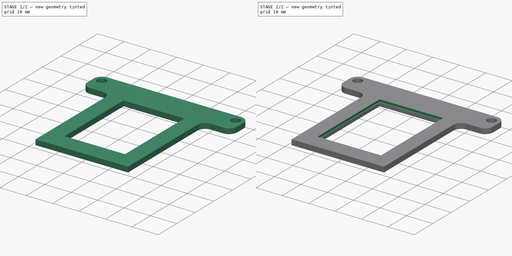
[diagram: build sequence overview — one tinted view per stage of 2, left to right]
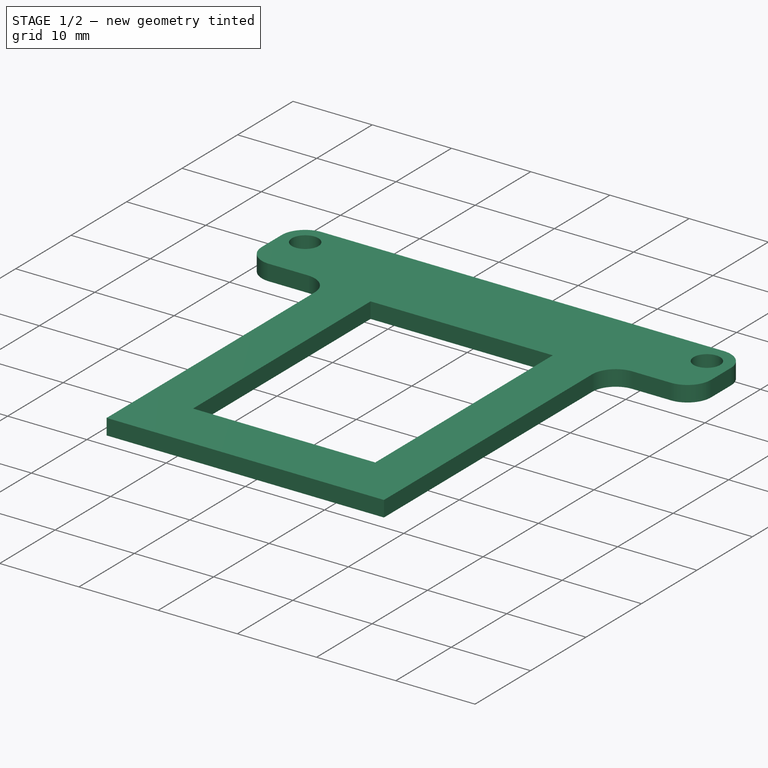
[diagram: stage 1 of 2 — iso view after this stage's code; geometry added in this stage tinted green]
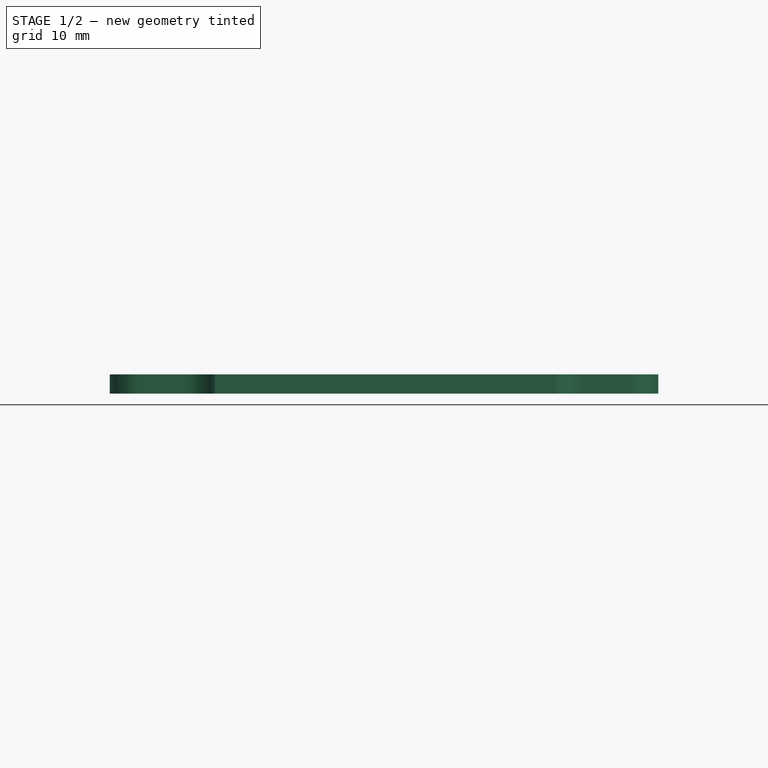
[diagram: stage 1 of 2 — front view after this stage's code; geometry added in this stage tinted green]
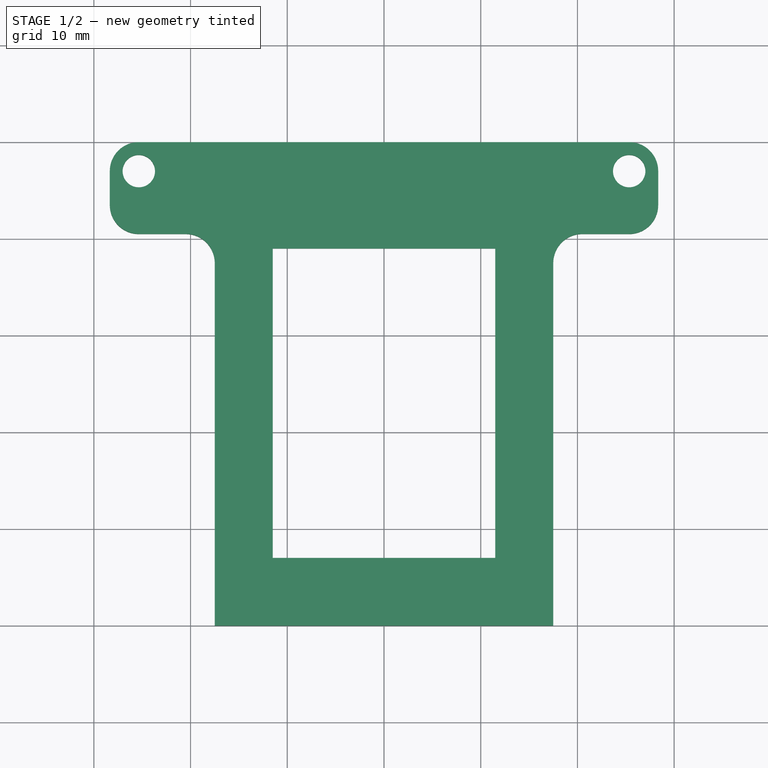
[diagram: stage 1 of 2 — top view after this stage's code; geometry added in this stage tinted green]
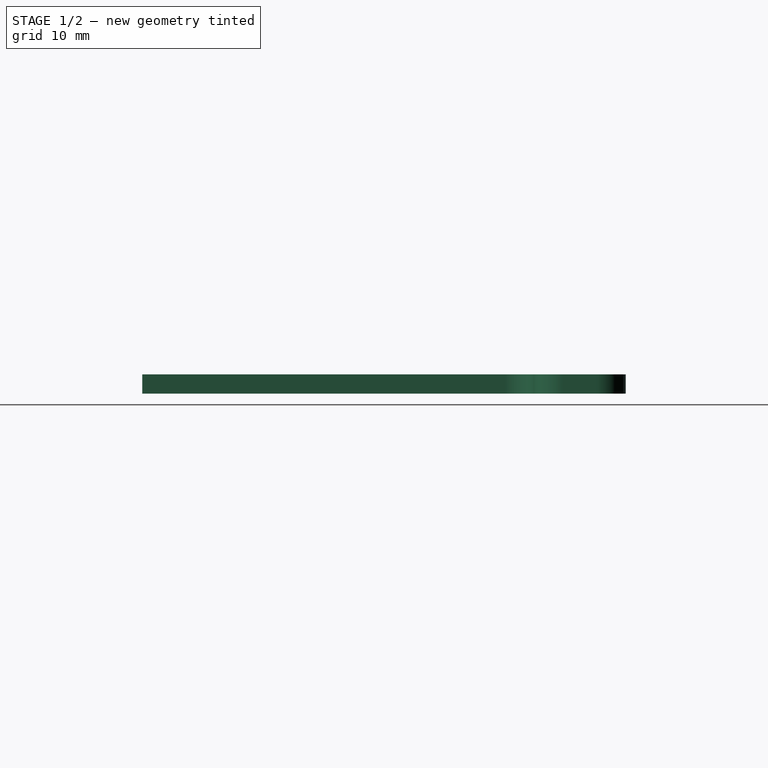
[diagram: stage 1 of 2 — right view after this stage's code; geometry added in this stage tinted green]
FCSTD DOCUMENT  (FreeCAD 0.16R4928 (Git))
Label: mote_holder
License: CreativeCommons Attribution-ShareAlike
LicenseURL: http://creativecommons.org/licenses/by-sa/4.0/
objects: Sketcher::SketchObject×2, PartDesign::Pad×1, PartDesign::Pocket×1
note: 6 computed .brp shape members not serialized (recipe doc carries the construction recipe); baked Part::Feature solids carry a one-line shape summary decoded from their .brp

FEATURE [Sketcher::SketchObject] Sketch
  sketch-geometry (20):
    g0: ArcOfCircle CenterX=-25.35 CenterY=47 CenterZ=0 NormalX=0 NormalY=0 NormalZ=1 Radius=3 StartAngle=1.5708 EndAngle=3.1416
    g1: ArcOfCircle CenterX=25.35 CenterY=47 CenterZ=0 NormalX=0 NormalY=0 NormalZ=1 Radius=3 StartAngle=6.28318 EndAngle=7.85398
    g2: LineSegment StartX=-25.35 StartY=50 StartZ=0 EndX=25.35 EndY=50 EndZ=0
    g3: LineSegment StartX=-28.35 StartY=47 StartZ=0 EndX=-28.35 EndY=43.5 EndZ=0
    g4: LineSegment StartX=-17.5 StartY=0 StartZ=0 EndX=17.5 EndY=0 EndZ=0
    g5: LineSegment StartX=28.35 StartY=43.5 StartZ=0 EndX=28.35 EndY=47 EndZ=0
    g6: Circle CenterX=-25.35 CenterY=47 CenterZ=0 NormalX=0 NormalY=0 NormalZ=1 Radius=1.675
    g7: Circle CenterX=25.35 CenterY=47 CenterZ=0 NormalX=0 NormalY=0 NormalZ=1 Radius=1.675
    g8: LineSegment StartX=-25.35 StartY=40.5 StartZ=0 EndX=-20.5 EndY=40.5 EndZ=0
    g9: LineSegment StartX=-17.5 StartY=37.5 StartZ=0 EndX=-17.5 EndY=0 EndZ=0
    g10: LineSegment StartX=25.35 StartY=40.5 StartZ=0 EndX=20.5 EndY=40.5 EndZ=0
    g11: LineSegment StartX=17.5 StartY=37.5 StartZ=0 EndX=17.5 EndY=0 EndZ=0
    g12: ArcOfCircle CenterX=25.35 CenterY=43.5 CenterZ=0 NormalX=0 NormalY=0 NormalZ=1 Radius=3 StartAngle=4.71239 EndAngle=6.28319
    g13: ArcOfCircle CenterX=-25.35 CenterY=43.5 CenterZ=0 NormalX=0 NormalY=0 NormalZ=1 Radius=3 StartAngle=3.14159 EndAngle=4.71239
    g14: ArcOfCircle CenterX=20.5 CenterY=37.5 CenterZ=0 NormalX=0 NormalY=0 NormalZ=1 Radius=3 StartAngle=1.5708 EndAngle=3.14159
    g15: ArcOfCircle CenterX=-20.5 CenterY=37.5 CenterZ=0 NormalX=0 NormalY=0 NormalZ=1 Radius=3 StartAngle=0 EndAngle=1.5708
    g16: LineSegment StartX=-11.5 StartY=39 StartZ=0 EndX=11.5 EndY=39 EndZ=0
    g17: LineSegment StartX=11.5 StartY=39 StartZ=0 EndX=11.5 EndY=7 EndZ=0
    g18: LineSegment StartX=11.5 StartY=7 StartZ=0 EndX=-11.5 EndY=7 EndZ=0
    g19: LineSegment StartX=-11.5 StartY=7 StartZ=0 EndX=-11.5 EndY=39 EndZ=0
  constraints (57):
    c: Tangent(g1,g2)
    c: Coincident(g5,g1)
    c: Coincident(g3,g0)
    c: Tangent(g1,g5)
    c: Symmetric(g6,g7,g-2)
    c: Equal(g7,g6)
    c: Radius(g7) = 1.675
    c: DistanceX(g6,g7) = 50.7
    c: Coincident(g0,g6)
    c: Coincident(g1,g7)
    c: Horizontal(g4)
    c: Vertical(g3)
    c: Vertical(g5)
    c: Coincident(g2,g1)
    c: Coincident(g2,g0)
    c: Horizontal(g2)
    c: Tangent(g0,g2)
    c: Radius(g0) = 3
    c: DistanceY(g1) = 50
    c: Horizontal(g8)
    c: PointOnObject(g9,g4)
    c: Vertical(g9)
    c: Horizontal(g10)
    c: PointOnObject(g11,g4)
    c: Vertical(g11)
    c: Coincident(g4,g11)
    c: Coincident(g4,g9)
    c: Symmetric(g4,g4,g-1)
    c: Equal(g10,g8)
    c: Equal(g11,g9)
    c: Tangent(g10,g12) = 1.5708
    c: Tangent(g5,g12) = -1.5708
    c: Tangent(g3,g13) = -1.5708
    c: Tangent(g8,g13) = -1.5708
    c: Tangent(g10,g14) = -1.5708
    c: Tangent(g11,g14) = -1.5708
    c: Tangent(g8,g15) = 1.5708
    c: Tangent(g9,g15) = 1.5708
    c: Equal(g13,g12)
    c: Equal(g8,g10)
    c: Equal(g5,g3)
    c: Radius(g13) = 3
    c: Equal(g15,g13)
    c: DistanceX(g4) = 35
    c: DistanceY(g5) = 3.5
    c: Coincident(g16,g17)
    c: Coincident(g17,g18)
    c: Coincident(g18,g19)
    c: Coincident(g19,g16)
    c: Horizontal(g16)
    c: Horizontal(g18)
    c: Vertical(g17)
    c: Vertical(g19)
    c: Symmetric(g18,g17,g-2)
    c: DistanceX(g16) = 23
    c: DistanceY(g17) = -32
    c: DistanceY(g18) = 7
FEATURE [PartDesign::Pad] Pad
  Length = 2
  Length2 = 100
  Sketch = -> Sketch
  Type = 0
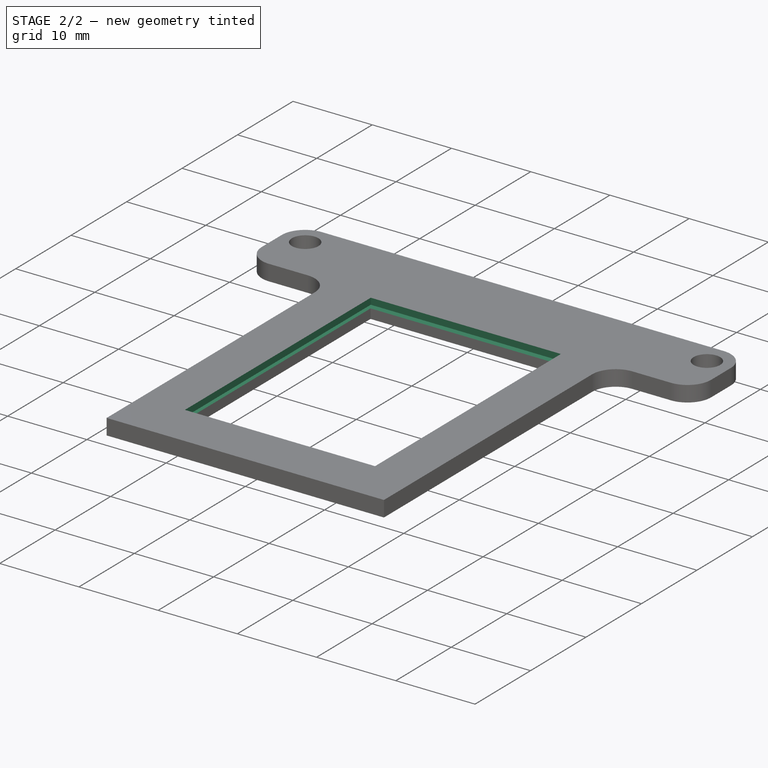
[diagram: stage 2 of 2 — iso view after this stage's code; geometry added in this stage tinted green]
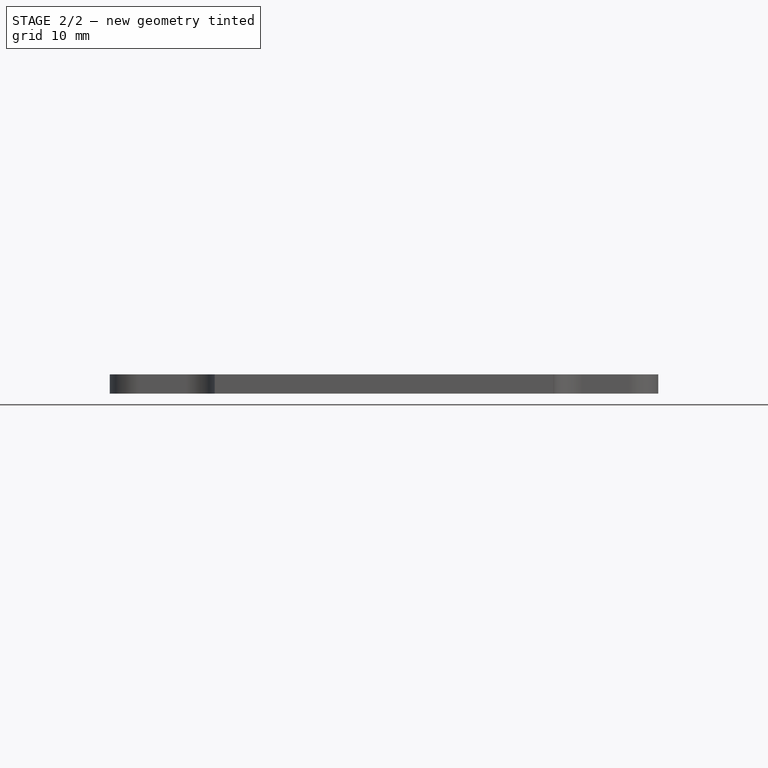
[diagram: stage 2 of 2 — front view after this stage's code; geometry added in this stage tinted green]
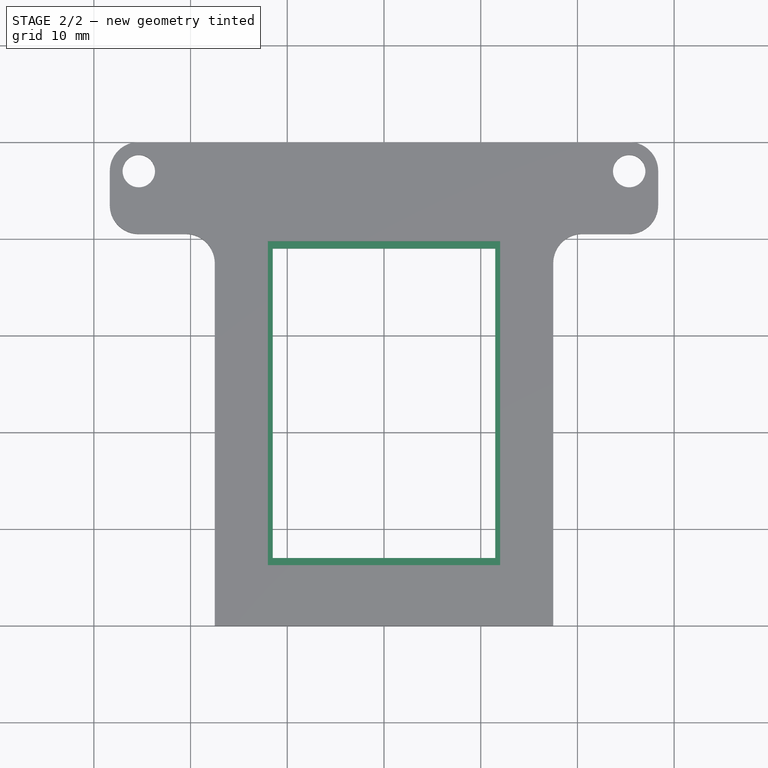
[diagram: stage 2 of 2 — top view after this stage's code; geometry added in this stage tinted green]
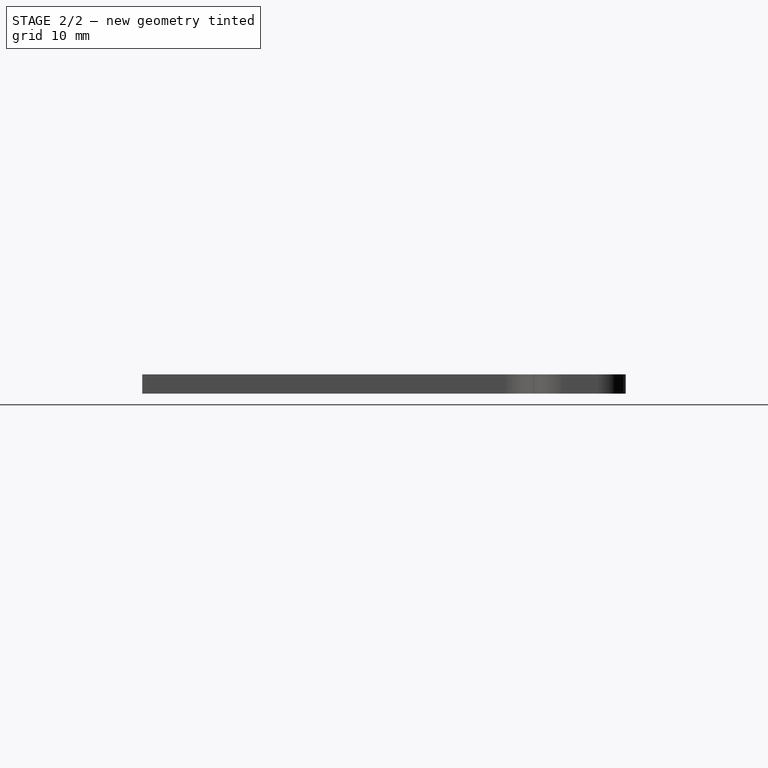
[diagram: stage 2 of 2 — right view after this stage's code; geometry added in this stage tinted green]
FEATURE [Sketcher::SketchObject] Sketch001
  ExternalGeometry = -> [Pad]
  Placement = pos=(0,0,2) rot=(0,0,1;0rad)
  Support = -> Pad [Face22]
  sketch-geometry (4):
    g0: LineSegment StartX=-12 StartY=39.75 StartZ=0 EndX=12 EndY=39.75 EndZ=0
    g1: LineSegment StartX=12 StartY=39.75 StartZ=0 EndX=12 EndY=6.25 EndZ=0
    g2: LineSegment StartX=12 StartY=6.25 StartZ=0 EndX=-12 EndY=6.25 EndZ=0
    g3: LineSegment StartX=-12 StartY=6.25 StartZ=0 EndX=-12 EndY=39.75 EndZ=0
  constraints (12):
    c: Coincident(g0,g1)
    c: Coincident(g1,g2)
    c: Coincident(g2,g3)
    c: Coincident(g3,g0)
    c: Horizontal(g0)
    c: Horizontal(g2)
    c: Vertical(g1)
    c: Vertical(g3)
    c: DistanceY(g-3,g0) = 0.75
    c: DistanceX(g-4,g0) = 0.5
    c: Symmetric(g0,g0,g-2)
    c: DistanceY(g-3,g2) = -0.75
FEATURE [PartDesign::Pocket] Pocket
  Length = 0.8
  Sketch = -> Sketch001
  Type = 0
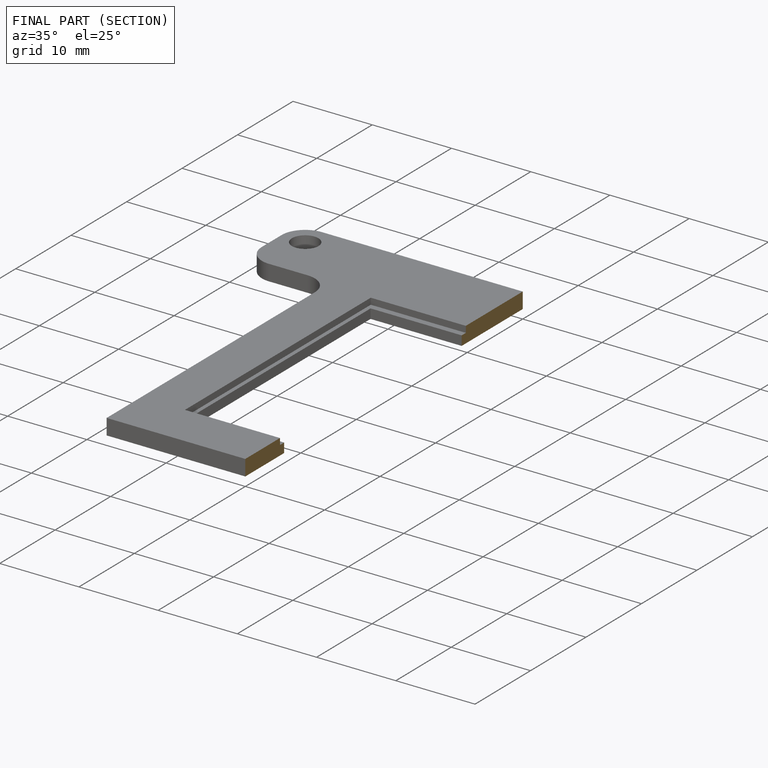
[diagram: finished part — half-section view (interior)]
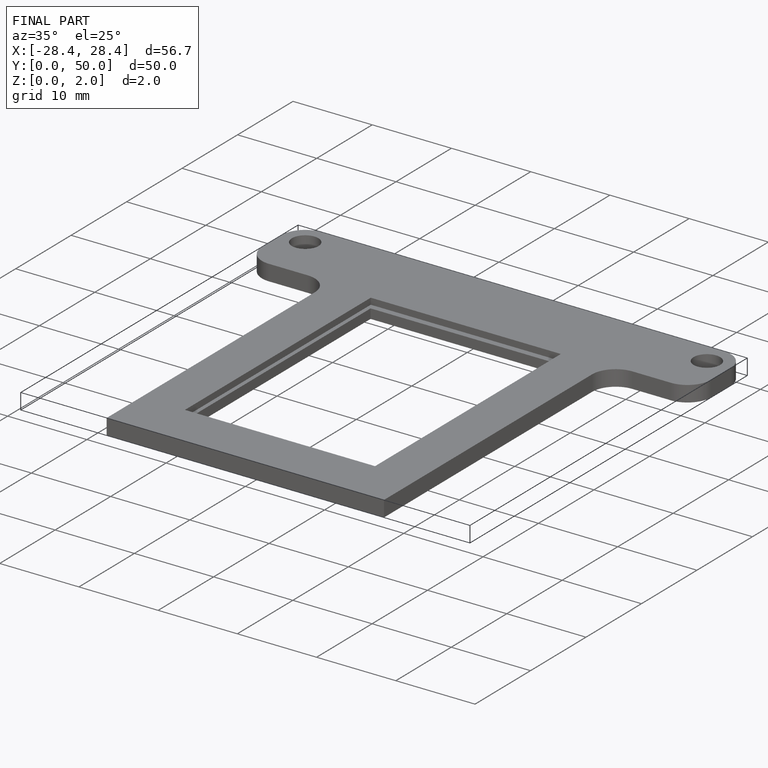
[diagram: finished part — iso view with bounding-box wireframe]
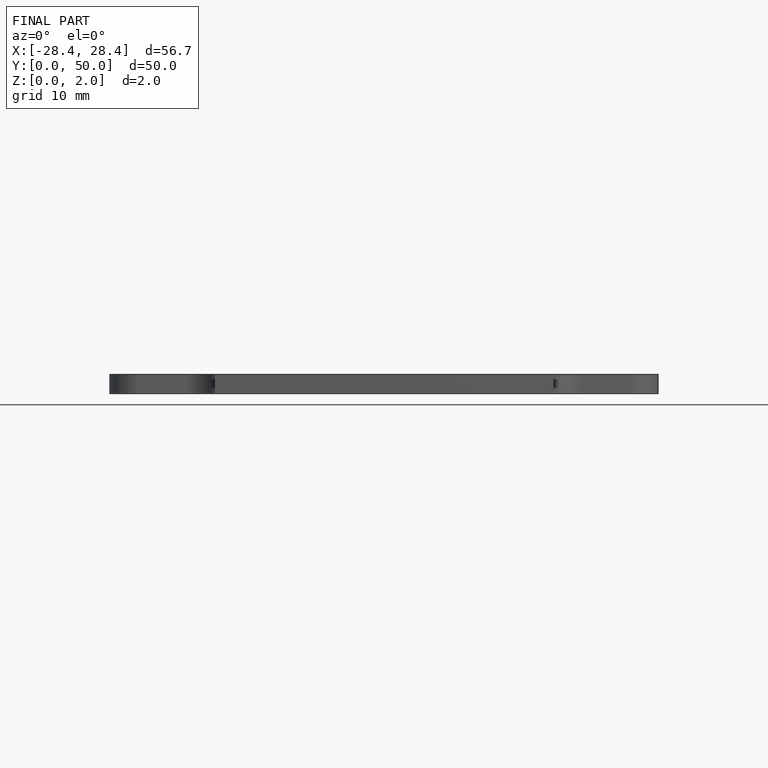
[diagram: finished part — front view with bounding-box wireframe]
